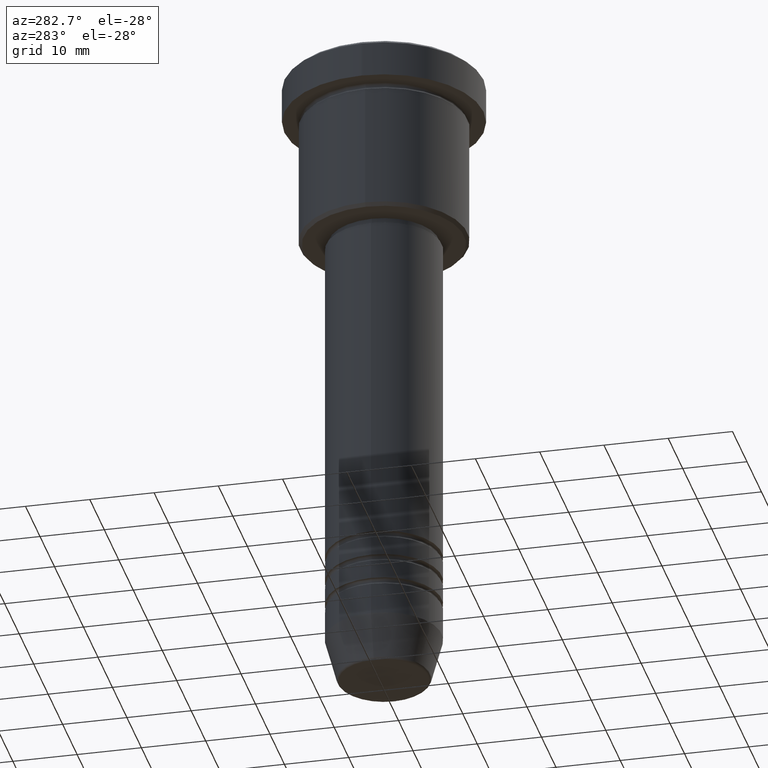
[diagram: clean part render]
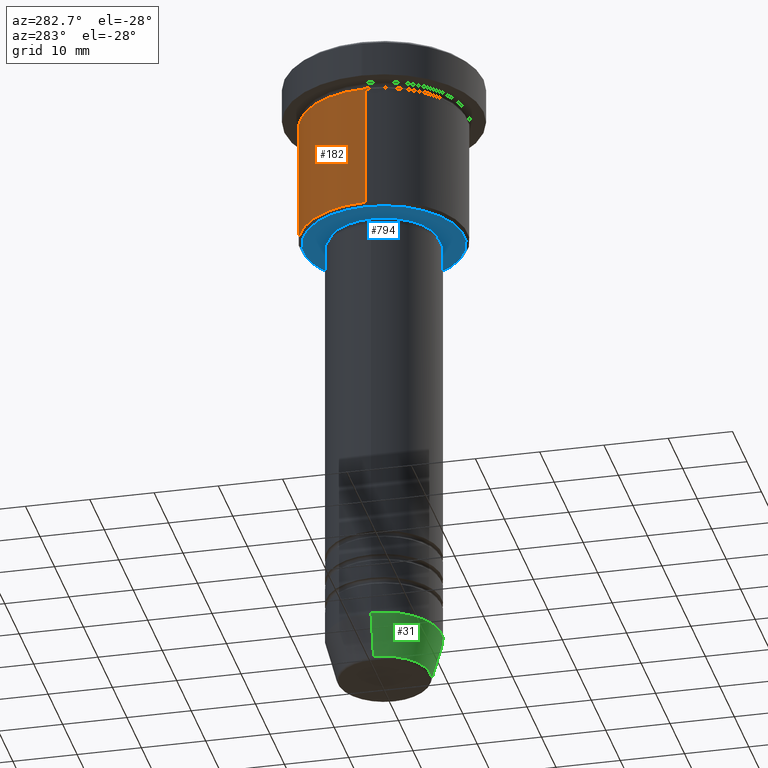
[diagram: same view with three faces highlighted in distinct colors, each labeled with its STEP entity id]
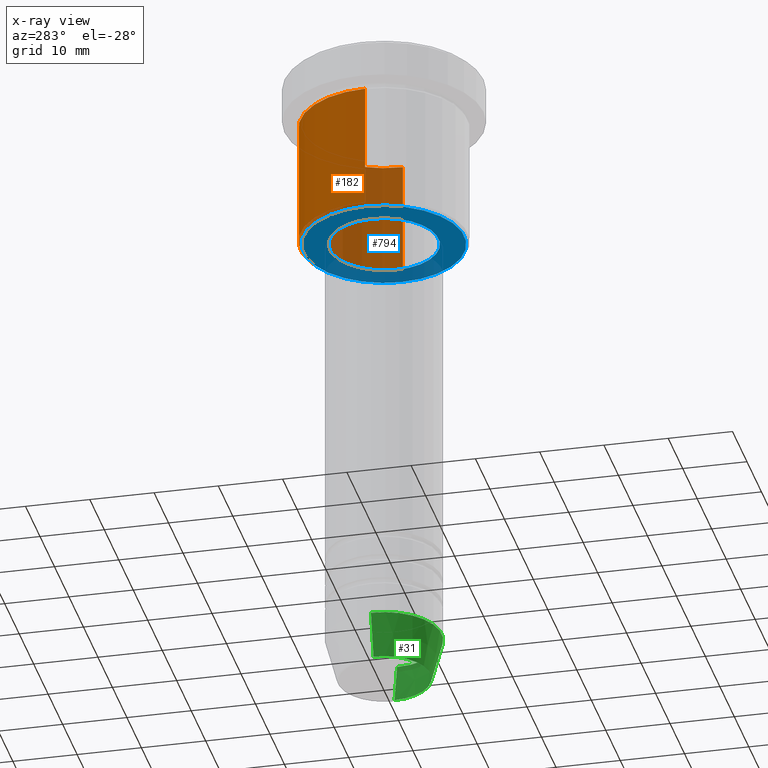
[diagram: x-ray of the same camera — body ghosted, the three highlighted faces saturated]
A machine part, auxiliary view with three faces highlighted in distinct colors.
The next image is the same camera in x-ray (body ghosted, the three faces saturated) — at least one of them is partly hidden behind the body in this view.
Their STEP definitions:

[orange] entity #182 — the highlighted cylindrical surface (partial cylindrical patch) has radius 13 mm, axis along (-0, -0, 1).
#41 = CIRCLE ( 'NONE', #1079, 13.00000000000000178 ) ;
#51 = VERTEX_POINT ( 'NONE', #791 ) ;
#78 = EDGE_CURVE ( 'NONE', #1083, #719, #41, .T. ) ;
#95 = CYLINDRICAL_SURFACE ( 'NONE', #723, 13.00000000000000178 ) ;
#111 = VECTOR ( 'NONE', #135, 1000.000000000000000 ) ;
#135 = DIRECTION ( 'NONE',  ( -0.000000000000000000, -0.000000000000000000, 1.000000000000000000 ) ) ;
#182 = ADVANCED_FACE ( 'NONE', ( #383 ), #95, .T. ) ;
#207 = AXIS2_PLACEMENT_3D ( 'NONE', #1053, #323, #963 ) ;
#274 = EDGE_CURVE ( 'NONE', #673, #1083, #952, .T. ) ;
#318 = DIRECTION ( 'NONE',  ( -0.000000000000000000, -0.000000000000000000, 1.000000000000000000 ) ) ;
#323 = DIRECTION ( 'NONE',  ( -0.000000000000000000, -0.000000000000000000, 1.000000000000000000 ) ) ;
#354 = CARTESIAN_POINT ( 'NONE',  ( 0.000000000000000000, 0.000000000000000000, -6.999999999999995559 ) ) ;
#383 = FACE_OUTER_BOUND ( 'NONE', #851, .T. ) ;
#446 = EDGE_CURVE ( 'NONE', #673, #51, #983, .T. ) ;
#455 = CARTESIAN_POINT ( 'NONE',  ( 13.00000000000000178, 0.000000000000000000, -6.999999999999995559 ) ) ;
#461 = CARTESIAN_POINT ( 'NONE',  ( 0.000000000000000000, 0.000000000000000000, 0.000000000000000000 ) ) ;
#469 = CARTESIAN_POINT ( 'NONE',  ( -13.00000000000000178, 1.592040838891559293E-15, -6.999999999999995559 ) ) ;
#562 = CARTESIAN_POINT ( 'NONE',  ( -13.00000000000000178, 1.592040838891559293E-15, 0.000000000000000000 ) ) ;
#589 = VECTOR ( 'NONE', #318, 1000.000000000000000 ) ;
#602 = ORIENTED_EDGE ( 'NONE', *, *, #78, .F. ) ;
#622 = DIRECTION ( 'NONE',  ( 1.000000000000000000, 0.000000000000000000, 0.000000000000000000 ) ) ;
#673 = VERTEX_POINT ( 'NONE', #926 ) ;
#712 = DIRECTION ( 'NONE',  ( -0.000000000000000000, -0.000000000000000000, 1.000000000000000000 ) ) ;
#719 = VERTEX_POINT ( 'NONE', #469 ) ;
#723 = AXIS2_PLACEMENT_3D ( 'NONE', #461, #742, #1086 ) ;
#742 = DIRECTION ( 'NONE',  ( -0.000000000000000000, -0.000000000000000000, 1.000000000000000000 ) ) ;
#791 = CARTESIAN_POINT ( 'NONE',  ( -13.00000000000000178, 1.592040838891559293E-15, -26.49999999999999289 ) ) ;
#800 = EDGE_CURVE ( 'NONE', #51, #719, #863, .T. ) ;
#851 = EDGE_LOOP ( 'NONE', ( #933, #990, #602, #1182 ) ) ;
#863 = LINE ( 'NONE', #562, #589 ) ;
#926 = CARTESIAN_POINT ( 'NONE',  ( 13.00000000000000178, 0.000000000000000000, -26.49999999999999289 ) ) ;
#933 = ORIENTED_EDGE ( 'NONE', *, *, #446, .T. ) ;
#934 = CARTESIAN_POINT ( 'NONE',  ( 13.00000000000000178, 0.000000000000000000, 0.000000000000000000 ) ) ;
#952 = LINE ( 'NONE', #934, #111 ) ;
#963 = DIRECTION ( 'NONE',  ( -1.000000000000000000, 0.000000000000000000, 0.000000000000000000 ) ) ;
#983 = CIRCLE ( 'NONE', #207, 13.00000000000000178 ) ;
#990 = ORIENTED_EDGE ( 'NONE', *, *, #800, .T. ) ;
#1053 = CARTESIAN_POINT ( 'NONE',  ( 0.000000000000000000, 0.000000000000000000, -26.49999999999999289 ) ) ;
#1079 = AXIS2_PLACEMENT_3D ( 'NONE', #354, #712, #622 ) ;
#1083 = VERTEX_POINT ( 'NONE', #455 ) ;
#1086 = DIRECTION ( 'NONE',  ( 1.000000000000000000, 0.000000000000000000, 0.000000000000000000 ) ) ;
#1182 = ORIENTED_EDGE ( 'NONE', *, *, #274, .F. ) ;

[blue] entity #794 — the highlighted planar face has unit normal (0, 0, -1).
#17 = CARTESIAN_POINT ( 'NONE',  ( 0.000000000000000000, 0.000000000000000000, -26.99999999999999645 ) ) ;
#26 = CIRCLE ( 'NONE', #176, 8.500000000000000000 ) ;
#33 = ORIENTED_EDGE ( 'NONE', *, *, #998, .T. ) ;
#75 = ORIENTED_EDGE ( 'NONE', *, *, #869, .T. ) ;
#94 = DIRECTION ( 'NONE',  ( 0.000000000000000000, 0.000000000000000000, -1.000000000000000000 ) ) ;
#119 = CARTESIAN_POINT ( 'NONE',  ( 0.000000000000000000, 13.00000000000000000, -27.00000000000000000 ) ) ;
#122 = VERTEX_POINT ( 'NONE', #195 ) ;
#146 = DIRECTION ( 'NONE',  ( -0.000000000000000000, -0.000000000000000000, 1.000000000000000000 ) ) ;
#176 = AXIS2_PLACEMENT_3D ( 'NONE', #1152, #146, #515 ) ;
#179 = VERTEX_POINT ( 'NONE', #199 ) ;
#195 = CARTESIAN_POINT ( 'NONE',  ( 8.500000000000000000, 0.000000000000000000, -26.99999999999999645 ) ) ;
#197 = VERTEX_POINT ( 'NONE', #1180 ) ;
#199 = CARTESIAN_POINT ( 'NONE',  ( -12.49999999999998579, 1.561424668912874519E-15, -27.00000000000000000 ) ) ;
#228 = CIRCLE ( 'NONE', #763, 12.49999999999998579 ) ;
#254 = CARTESIAN_POINT ( 'NONE',  ( 0.000000000000000000, 0.000000000000000000, -27.00000000000000000 ) ) ;
#297 = PLANE ( 'NONE',  #457 ) ;
#320 = EDGE_LOOP ( 'NONE', ( #33, #75 ) ) ;
#326 = AXIS2_PLACEMENT_3D ( 'NONE', #254, #605, #1128 ) ;
#431 = EDGE_CURVE ( 'NONE', #197, #179, #836, .T. ) ;
#457 = AXIS2_PLACEMENT_3D ( 'NONE', #119, #581, #586 ) ;
#460 = DIRECTION ( 'NONE',  ( -1.000000000000000000, 0.000000000000000000, 0.000000000000000000 ) ) ;
#476 = CIRCLE ( 'NONE', #967, 8.500000000000000000 ) ;
#490 = DIRECTION ( 'NONE',  ( 1.000000000000000000, 0.000000000000000000, 0.000000000000000000 ) ) ;
#501 = ORIENTED_EDGE ( 'NONE', *, *, #601, .T. ) ;
#515 = DIRECTION ( 'NONE',  ( 1.000000000000000000, 0.000000000000000000, 0.000000000000000000 ) ) ;
#581 = DIRECTION ( 'NONE',  ( 0.000000000000000000, 0.000000000000000000, -1.000000000000000000 ) ) ;
#586 = DIRECTION ( 'NONE',  ( -1.000000000000000000, 0.000000000000000000, -0.000000000000000000 ) ) ;
#601 = EDGE_CURVE ( 'NONE', #179, #197, #228, .T. ) ;
#605 = DIRECTION ( 'NONE',  ( 0.000000000000000000, 0.000000000000000000, -1.000000000000000000 ) ) ;
#716 = CARTESIAN_POINT ( 'NONE',  ( 0.000000000000000000, 0.000000000000000000, -27.00000000000000000 ) ) ;
#735 = CARTESIAN_POINT ( 'NONE',  ( -8.500000000000000000, 1.040949779275250140E-15, -26.99999999999999645 ) ) ;
#763 = AXIS2_PLACEMENT_3D ( 'NONE', #716, #94, #460 ) ;
#770 = FACE_OUTER_BOUND ( 'NONE', #1148, .T. ) ;
#794 = ADVANCED_FACE ( 'NONE', ( #770, #1123 ), #297, .T. ) ;
#810 = ORIENTED_EDGE ( 'NONE', *, *, #431, .T. ) ;
#836 = CIRCLE ( 'NONE', #326, 12.49999999999998579 ) ;
#869 = EDGE_CURVE ( 'NONE', #1119, #122, #476, .T. ) ;
#967 = AXIS2_PLACEMENT_3D ( 'NONE', #17, #1018, #490 ) ;
#998 = EDGE_CURVE ( 'NONE', #122, #1119, #26, .T. ) ;
#1018 = DIRECTION ( 'NONE',  ( -0.000000000000000000, -0.000000000000000000, 1.000000000000000000 ) ) ;
#1119 = VERTEX_POINT ( 'NONE', #735 ) ;
#1123 = FACE_BOUND ( 'NONE', #320, .T. ) ;
#1128 = DIRECTION ( 'NONE',  ( -1.000000000000000000, 0.000000000000000000, 0.000000000000000000 ) ) ;
#1148 = EDGE_LOOP ( 'NONE', ( #810, #501 ) ) ;
#1152 = CARTESIAN_POINT ( 'NONE',  ( 0.000000000000000000, 0.000000000000000000, -26.99999999999999645 ) ) ;
#1180 = CARTESIAN_POINT ( 'NONE',  ( 12.49999999999998579, 0.000000000000000000, -27.00000000000000000 ) ) ;

[green] entity #31 — the highlighted conical surface has half-angle 15 deg.
#31 = ADVANCED_FACE ( 'NONE', ( #962 ), #85, .T. ) ;
#37 = DIRECTION ( 'NONE',  ( -0.2588190451025213501, 3.169619151431772337E-17, 0.9659258262890680902 ) ) ;
#58 = VERTEX_POINT ( 'NONE', #1158 ) ;
#64 = ORIENTED_EDGE ( 'NONE', *, *, #814, .T. ) ;
#65 = AXIS2_PLACEMENT_3D ( 'NONE', #66, #877, #443 ) ;
#66 = CARTESIAN_POINT ( 'NONE',  ( 0.000000000000000000, 0.000000000000000000, -95.00000000000000000 ) ) ;
#85 = CONICAL_SURFACE ( 'NONE', #65, 9.000000000000000000, 0.2617993877991500740 ) ;
#91 = CIRCLE ( 'NONE', #1117, 7.223655072137188604 ) ;
#120 = ORIENTED_EDGE ( 'NONE', *, *, #287, .F. ) ;
#142 = CARTESIAN_POINT ( 'NONE',  ( -9.000000000000000000, 1.102182119232617714E-15, -95.00000000000000000 ) ) ;
#270 = DIRECTION ( 'NONE',  ( 0.2588190451025213501, 0.000000000000000000, 0.9659258262890680902 ) ) ;
#282 = LINE ( 'NONE', #1009, #729 ) ;
#287 = EDGE_CURVE ( 'NONE', #58, #785, #1125, .T. ) ;
#302 = DIRECTION ( 'NONE',  ( 1.000000000000000000, 0.000000000000000000, 0.000000000000000000 ) ) ;
#307 = ORIENTED_EDGE ( 'NONE', *, *, #1168, .T. ) ;
#357 = CIRCLE ( 'NONE', #1064, 9.000000000000000000 ) ;
#443 = DIRECTION ( 'NONE',  ( 1.000000000000000000, 0.000000000000000000, 0.000000000000000000 ) ) ;
#464 = ORIENTED_EDGE ( 'NONE', *, *, #1175, .F. ) ;
#587 = VECTOR ( 'NONE', #37, 1000.000000000000000 ) ;
#642 = DIRECTION ( 'NONE',  ( 1.000000000000000000, 0.000000000000000000, 0.000000000000000000 ) ) ;
#680 = DIRECTION ( 'NONE',  ( -0.000000000000000000, -0.000000000000000000, 1.000000000000000000 ) ) ;
#729 = VECTOR ( 'NONE', #270, 1000.000000000000000 ) ;
#762 = CARTESIAN_POINT ( 'NONE',  ( 7.223655072137188604, 0.000000000000000000, -101.6294095225512706 ) ) ;
#772 = VERTEX_POINT ( 'NONE', #762 ) ;
#775 = CARTESIAN_POINT ( 'NONE',  ( 0.000000000000000000, 0.000000000000000000, -101.6294095225512706 ) ) ;
#785 = VERTEX_POINT ( 'NONE', #1118 ) ;
#814 = EDGE_CURVE ( 'NONE', #58, #772, #91, .T. ) ;
#834 = VERTEX_POINT ( 'NONE', #942 ) ;
#877 = DIRECTION ( 'NONE',  ( -0.000000000000000000, -0.000000000000000000, 1.000000000000000000 ) ) ;
#913 = DIRECTION ( 'NONE',  ( -0.000000000000000000, -0.000000000000000000, 1.000000000000000000 ) ) ;
#942 = CARTESIAN_POINT ( 'NONE',  ( 9.000000000000000000, 0.000000000000000000, -95.00000000000000000 ) ) ;
#962 = FACE_OUTER_BOUND ( 'NONE', #1136, .T. ) ;
#1009 = CARTESIAN_POINT ( 'NONE',  ( 9.000000000000000000, 0.000000000000000000, -95.00000000000000000 ) ) ;
#1064 = AXIS2_PLACEMENT_3D ( 'NONE', #1166, #913, #642 ) ;
#1117 = AXIS2_PLACEMENT_3D ( 'NONE', #775, #680, #302 ) ;
#1118 = CARTESIAN_POINT ( 'NONE',  ( -9.000000000000000000, 1.102182119232617714E-15, -95.00000000000000000 ) ) ;
#1125 = LINE ( 'NONE', #142, #587 ) ;
#1136 = EDGE_LOOP ( 'NONE', ( #120, #64, #307, #464 ) ) ;
#1158 = CARTESIAN_POINT ( 'NONE',  ( -7.223655072137189492, 9.934123627281765110E-16, -101.6294095225512706 ) ) ;
#1166 = CARTESIAN_POINT ( 'NONE',  ( 0.000000000000000000, 0.000000000000000000, -95.00000000000000000 ) ) ;
#1168 = EDGE_CURVE ( 'NONE', #772, #834, #282, .T. ) ;
#1175 = EDGE_CURVE ( 'NONE', #785, #834, #357, .T. ) ;